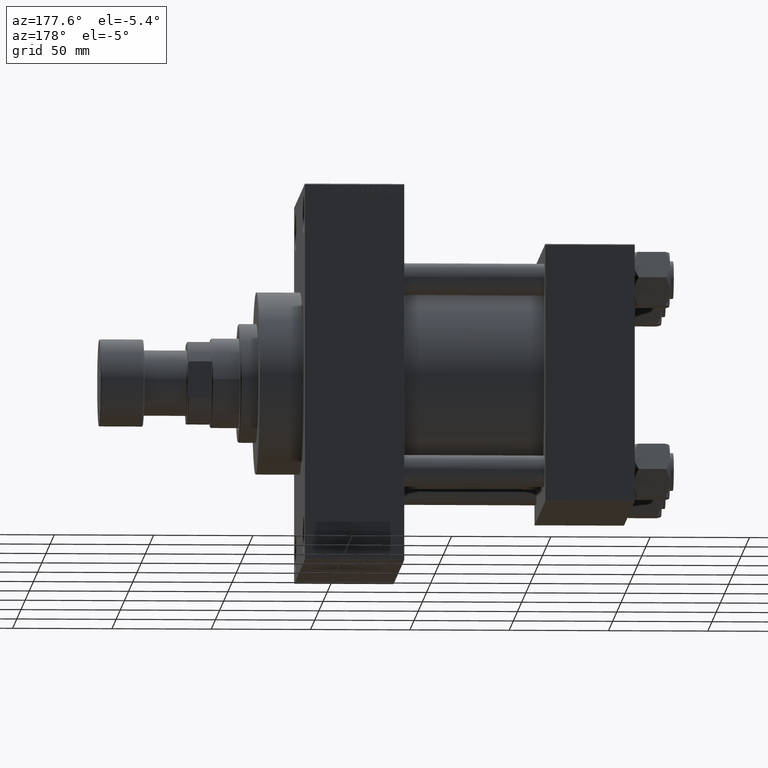
[diagram: clean part render]
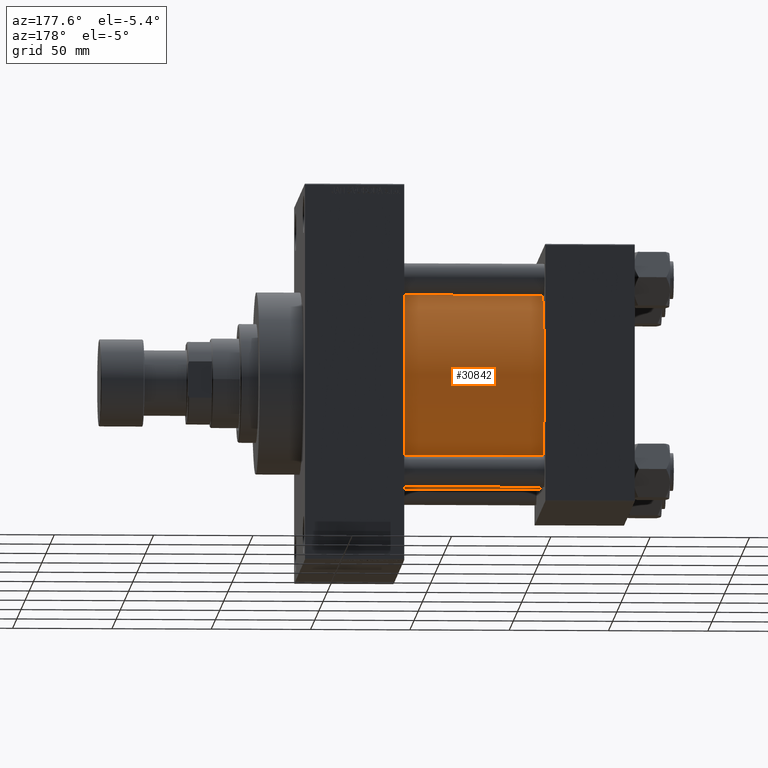
[diagram: same view with one face highlighted and labeled with its STEP entity id]
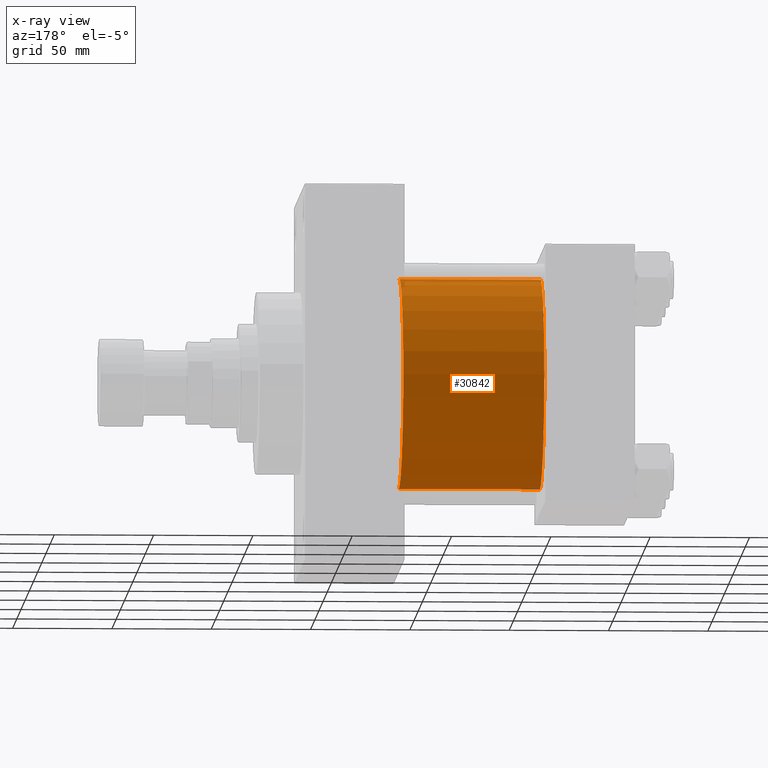
[diagram: x-ray of the same camera — body ghosted, the highlighted face saturated]
A machine part, auxiliary view. The second image highlights one B-rep face of the part: STEP entity #30842.
The next image is the same camera in x-ray: the body ghosted, the highlighted face saturated — about 3% of this face is hidden behind the body in this view.
In plain terms, the highlighted cylindrical surface (partial cylindrical patch) has radius 53 mm, axis along (-1, -0, -0).
Its self-contained STEP definition (entity closure, byte-faithful):
#230 = ORIENTED_EDGE ( 'NONE', *, *, #35053, .T. ) ;
#635 = CARTESIAN_POINT ( 'NONE',  ( 115.9999999999999858, -2.602085213965210642E-15, 0.000000000000000000 ) ) ;
#3122 = ORIENTED_EDGE ( 'NONE', *, *, #36110, .F. ) ;
#6533 = CARTESIAN_POINT ( 'NONE',  ( 115.9999999999999858, -2.602085213965210642E-15, 53.00000000000000711 ) ) ;
#9295 = VECTOR ( 'NONE', #33048, 1000.000000000000000 ) ;
#9840 = FACE_OUTER_BOUND ( 'NONE', #35059, .T. ) ;
#10012 = AXIS2_PLACEMENT_3D ( 'NONE', #46801, #35624, #38546 ) ;
#10725 = VERTEX_POINT ( 'NONE', #22978 ) ;
#11451 = DIRECTION ( 'NONE',  ( -1.000000000000000000, -0.000000000000000000, -0.000000000000000000 ) ) ;
#12136 = ORIENTED_EDGE ( 'NONE', *, *, #36916, .F. ) ;
#12972 = ORIENTED_EDGE ( 'NONE', *, *, #37710, .T. ) ;
#15707 = DIRECTION ( 'NONE',  ( 0.000000000000000000, 0.000000000000000000, -1.000000000000000000 ) ) ;
#17063 = VECTOR ( 'NONE', #11451, 1000.000000000000000 ) ;
#18538 = VERTEX_POINT ( 'NONE', #24631 ) ;
#21154 = VERTEX_POINT ( 'NONE', #21341 ) ;
#21341 = CARTESIAN_POINT ( 'NONE',  ( 115.9999999999999858, 3.888542821515762466E-15, -53.00000000000000711 ) ) ;
#22402 = CARTESIAN_POINT ( 'NONE',  ( 115.9999999999999858, -2.602085213965210642E-15, 53.00000000000000711 ) ) ;
#22978 = CARTESIAN_POINT ( 'NONE',  ( 45.00000000000000000, 3.888542821515762466E-15, -53.00000000000000711 ) ) ;
#24631 = CARTESIAN_POINT ( 'NONE',  ( 45.00000000000000000, -2.602085213965210642E-15, 53.00000000000000711 ) ) ;
#25264 = LINE ( 'NONE', #44466, #9295 ) ;
#26420 = DIRECTION ( 'NONE',  ( 1.000000000000000000, -0.000000000000000000, 0.000000000000000000 ) ) ;
#30277 = VERTEX_POINT ( 'NONE', #6533 ) ;
#30842 = ADVANCED_FACE ( 'NONE', ( #9840 ), #31249, .T. ) ;
#31249 = CYLINDRICAL_SURFACE ( 'NONE', #10012, 53.00000000000000711 ) ;
#33048 = DIRECTION ( 'NONE',  ( -1.000000000000000000, -0.000000000000000000, -0.000000000000000000 ) ) ;
#34190 = DIRECTION ( 'NONE',  ( 1.000000000000000000, 0.000000000000000000, 0.000000000000000000 ) ) ;
#35053 = EDGE_CURVE ( 'NONE', #21154, #10725, #25264, .T. ) ;
#35059 = EDGE_LOOP ( 'NONE', ( #12136, #230, #12972, #3122 ) ) ;
#35624 = DIRECTION ( 'NONE',  ( -1.000000000000000000, -0.000000000000000000, -0.000000000000000000 ) ) ;
#36110 = EDGE_CURVE ( 'NONE', #30277, #18538, #44528, .T. ) ;
#36916 = EDGE_CURVE ( 'NONE', #21154, #30277, #45842, .T. ) ;
#37710 = EDGE_CURVE ( 'NONE', #10725, #18538, #47435, .T. ) ;
#38140 = AXIS2_PLACEMENT_3D ( 'NONE', #44903, #26420, #44185 ) ;
#38546 = DIRECTION ( 'NONE',  ( 0.000000000000000000, 0.000000000000000000, 1.000000000000000000 ) ) ;
#39622 = AXIS2_PLACEMENT_3D ( 'NONE', #635, #34190, #15707 ) ;
#44185 = DIRECTION ( 'NONE',  ( 0.000000000000000000, 0.000000000000000000, 1.000000000000000000 ) ) ;
#44466 = CARTESIAN_POINT ( 'NONE',  ( 115.9999999999999858, 3.888542821515762466E-15, -53.00000000000000711 ) ) ;
#44528 = LINE ( 'NONE', #22402, #17063 ) ;
#44903 = CARTESIAN_POINT ( 'NONE',  ( 45.00000000000000000, -2.602085213965210642E-15, 0.000000000000000000 ) ) ;
#45842 = CIRCLE ( 'NONE', #39622, 53.00000000000000711 ) ;
#46801 = CARTESIAN_POINT ( 'NONE',  ( 115.9999999999999858, -2.602085213965210642E-15, 0.000000000000000000 ) ) ;
#47435 = CIRCLE ( 'NONE', #38140, 53.00000000000000711 ) ;